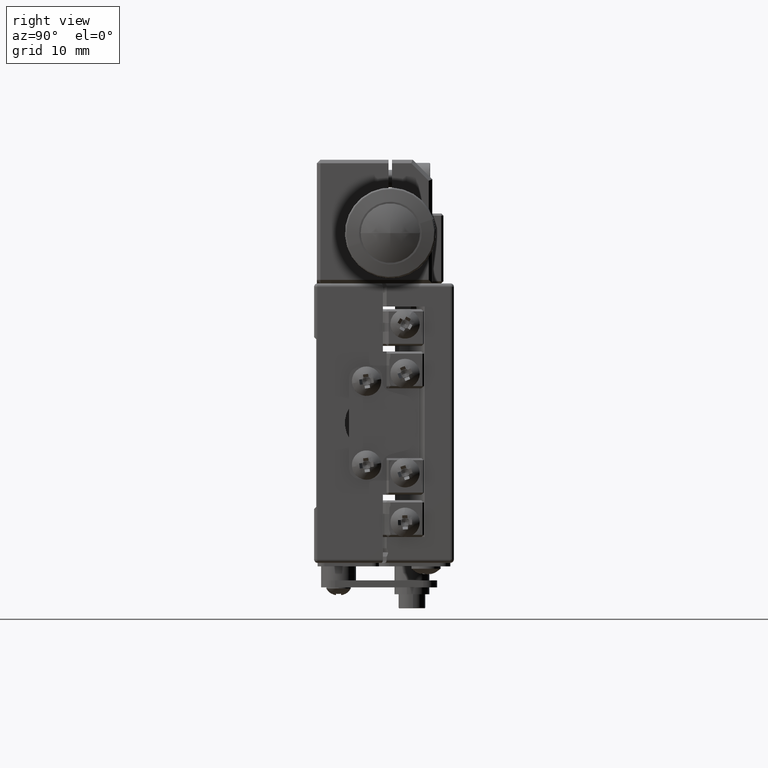
[diagram: clean part render]
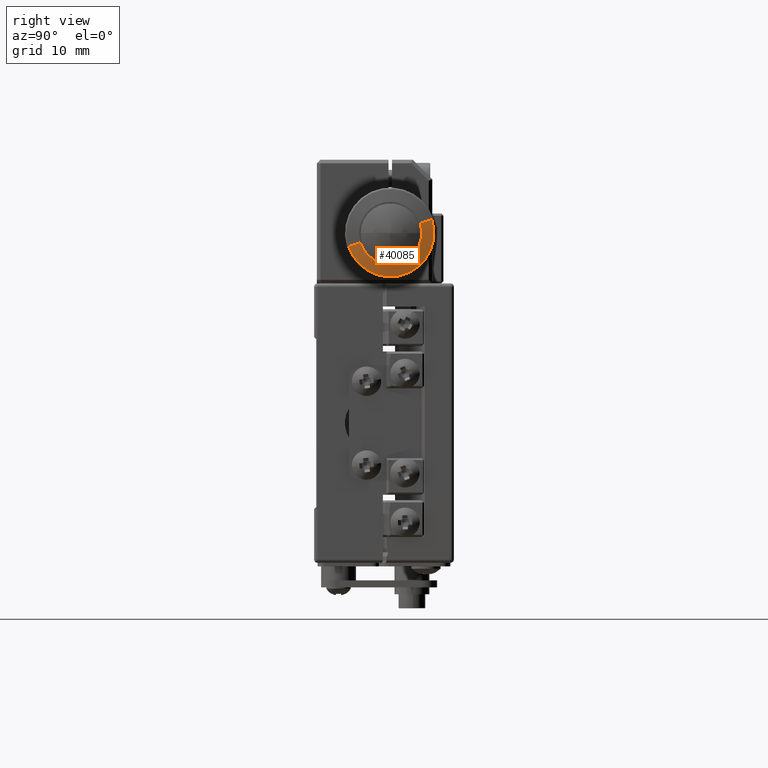
[diagram: same view with one face highlighted and labeled with its STEP entity id]
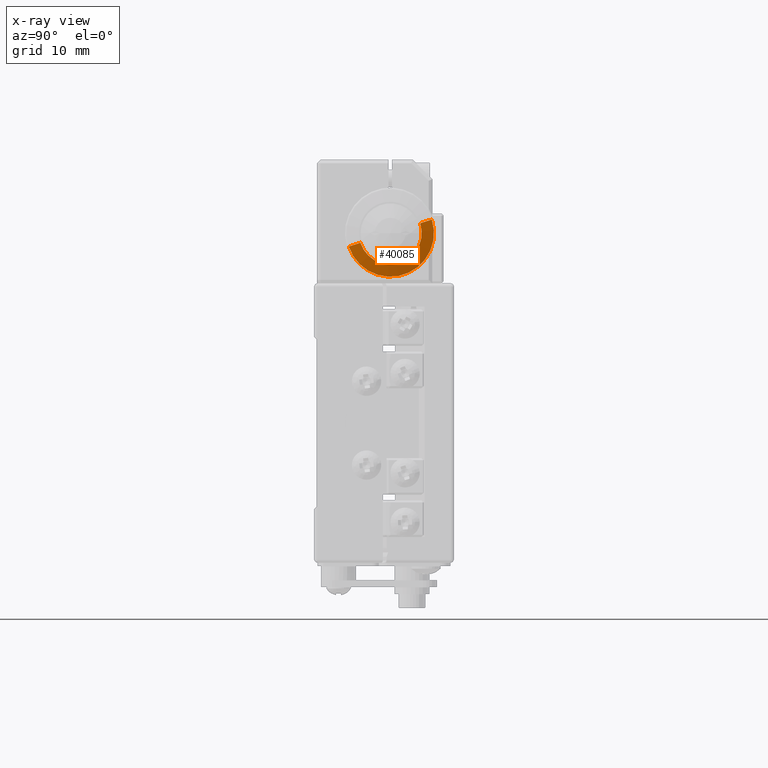
[diagram: x-ray of the same camera — body ghosted, the highlighted face saturated]
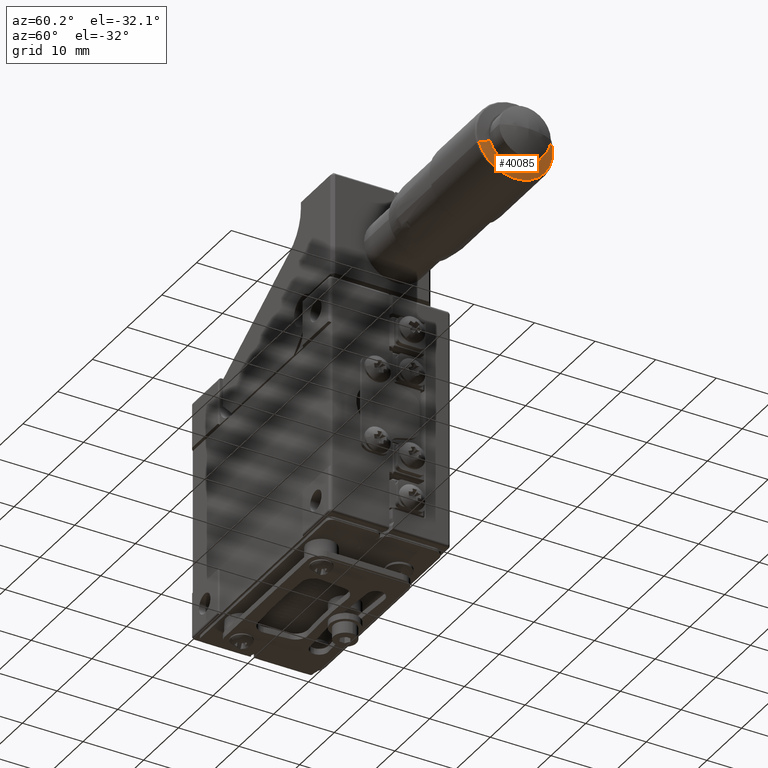
[diagram: same view with one face highlighted and labeled with its STEP entity id]
A machine part, right view. The second image highlights one B-rep face of the part: STEP entity #40085.
The next image is the same camera in x-ray: the body ghosted, the highlighted face saturated — about 0% of this face is hidden behind the body in this view.
A second angle (auxiliary view) of the same face is appended — the face is thin or edge-on in the first view.
In plain terms, the highlighted conical surface has half-angle 80 deg.
Its self-contained STEP definition (entity closure, byte-faithful):
#1636 = CARTESIAN_POINT ( 'NONE',  ( 54.47786701599179793, -9.085117701700040627, 25.19309545873329981 ) ) ;
#2119 = EDGE_LOOP ( 'NONE', ( #42265, #21246, #3266, #27349 ) ) ;
#2928 = AXIS2_PLACEMENT_3D ( 'NONE', #17051, #16528, #4926 ) ;
#3266 = ORIENTED_EDGE ( 'NONE', *, *, #47922, .T. ) ;
#3413 = DIRECTION ( 'NONE',  ( -0.1736481776669270838, 0.9366078308002453445, 0.3043223318729900706 ) ) ;
#3796 = DIRECTION ( 'NONE',  ( -1.000000000000000000, 2.359727993358414923E-16, 6.182898819248050451E-15 ) ) ;
#4331 = CARTESIAN_POINT ( 'NONE',  ( 54.83052097740880271, -7.183004669109699591, 25.81112944748324978 ) ) ;
#4926 = DIRECTION ( 'NONE',  ( 2.219702199234860296E-15, 0.9510565162951500895, 0.3090169943749581649 ) ) ;
#4933 = CONICAL_SURFACE ( 'NONE', #38495, 6.500000000000089706, 1.396263401595462472 ) ;
#7167 = CARTESIAN_POINT ( 'NONE',  ( 54.47786701599190451, 3.278617010137089949, 29.21031638560785026 ) ) ;
#11342 = CARTESIAN_POINT ( 'NONE',  ( 54.47786701599179793, -2.903250345781474895, 27.20170592217055017 ) ) ;
#12834 = CARTESIAN_POINT ( 'NONE',  ( 54.52157945254229787, -8.849345516085369567, 25.26970248566340160 ) ) ;
#16528 = DIRECTION ( 'NONE',  ( 1.000000000000000000, -3.164872668631190057E-16, -6.209059555579371046E-15 ) ) ;
#17051 = CARTESIAN_POINT ( 'NONE',  ( 54.52157945254229787, -2.903250345781474895, 27.20170592217055017 ) ) ;
#19698 = EDGE_CURVE ( 'NONE', #20988, #36322, #38769, .T. ) ;
#19996 = VECTOR ( 'NONE', #3413, 1000.000000000000114 ) ;
#20988 = VERTEX_POINT ( 'NONE', #4331 ) ;
#21246 = ORIENTED_EDGE ( 'NONE', *, *, #19698, .T. ) ;
#23874 = LINE ( 'NONE', #7167, #19996 ) ;
#24807 = DIRECTION ( 'NONE',  ( 2.135044278125271760E-15, 0.9510565162951499785, 0.3090169943749585535 ) ) ;
#27349 = ORIENTED_EDGE ( 'NONE', *, *, #45433, .F. ) ;
#28108 = VERTEX_POINT ( 'NONE', #36527 ) ;
#31549 = EDGE_CURVE ( 'NONE', #47776, #20988, #43419, .T. ) ;
#31946 = CARTESIAN_POINT ( 'NONE',  ( 54.83052097740880271, -2.903250345781485109, 27.20170592217055017 ) ) ;
#32878 = FACE_OUTER_BOUND ( 'NONE', #2119, .T. ) ;
#33550 = CARTESIAN_POINT ( 'NONE',  ( 54.83052097740880271, 1.376503977546760016, 28.59228239685790030 ) ) ;
#33865 = CIRCLE ( 'NONE', #2928, 6.252094453300168553 ) ;
#35274 = DIRECTION ( 'NONE',  ( -0.1736481776669305810, -0.9366078308002453445, -0.3043223318729880722 ) ) ;
#36322 = VERTEX_POINT ( 'NONE', #12834 ) ;
#36527 = CARTESIAN_POINT ( 'NONE',  ( 54.52157945254229787, 3.042844824522420222, 29.13370935867775202 ) ) ;
#38495 = AXIS2_PLACEMENT_3D ( 'NONE', #11342, #3796, #24807 ) ;
#38769 = LINE ( 'NONE', #1636, #44570 ) ;
#40085 = ADVANCED_FACE ( 'NONE', ( #32878 ), #4933, .T. ) ;
#41684 = AXIS2_PLACEMENT_3D ( 'NONE', #31946, #52654, #48582 ) ;
#42265 = ORIENTED_EDGE ( 'NONE', *, *, #31549, .T. ) ;
#43419 = CIRCLE ( 'NONE', #41684, 4.500000000000070166 ) ;
#44570 = VECTOR ( 'NONE', #35274, 1000.000000000000114 ) ;
#45433 = EDGE_CURVE ( 'NONE', #47776, #28108, #23874, .T. ) ;
#47776 = VERTEX_POINT ( 'NONE', #33550 ) ;
#47922 = EDGE_CURVE ( 'NONE', #36322, #28108, #33865, .T. ) ;
#48582 = DIRECTION ( 'NONE',  ( 1.541976423090471179E-15, 0.9510565162951498674, 0.3090169943749586090 ) ) ;
#52654 = DIRECTION ( 'NONE',  ( -1.000000000000000000, -3.280682488001894942E-16, 5.999630773224790695E-15 ) ) ;